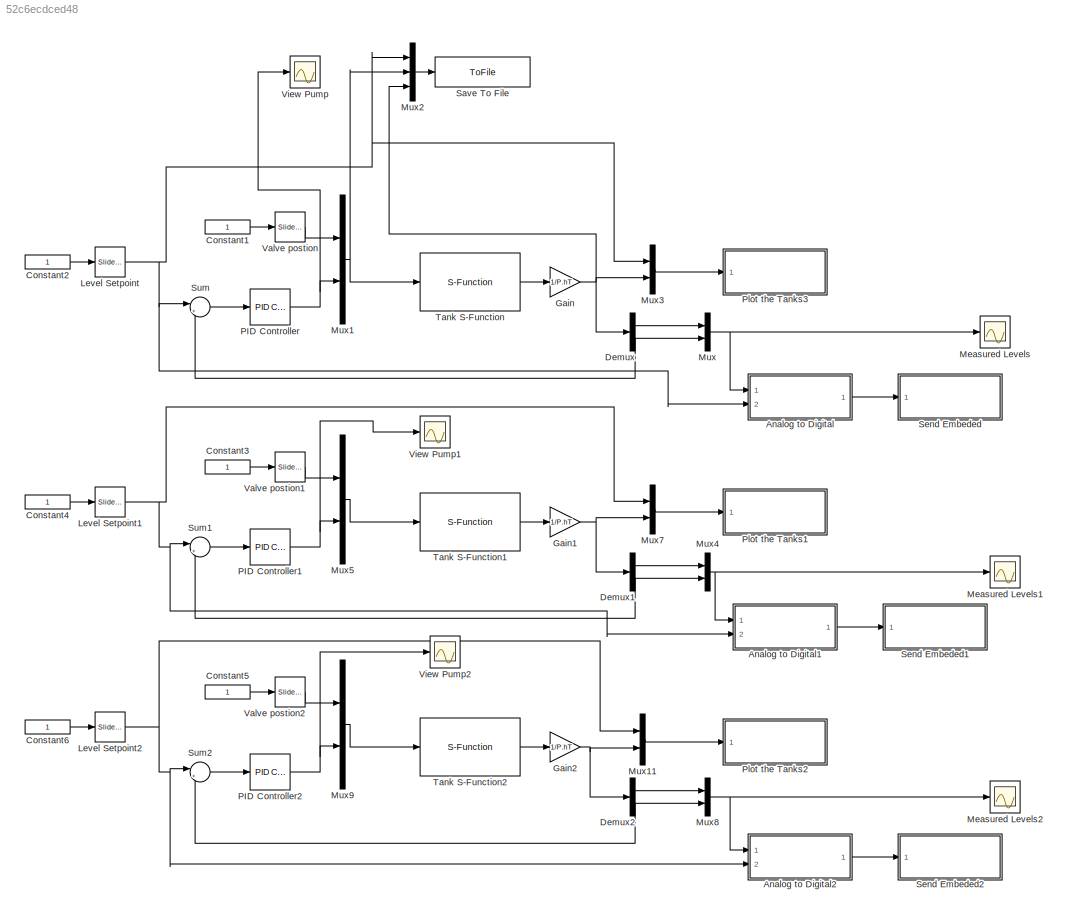
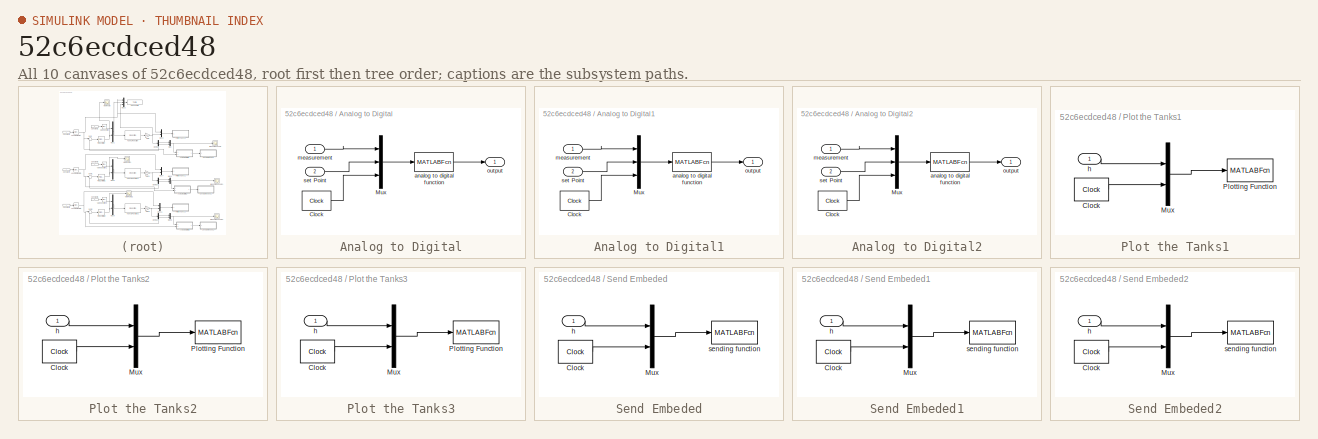
[diagram: thumbnail index - all 10 canvases of the model, root first then tree order]
MODEL slx_52c6ecdced48
KIND model
CONFIG AbsTol = auto
CONFIG EnableMultiTasking = on
CONFIG FixedStep = auto
CONFIG MaxStep = auto
CONFIG MinStep = auto
CONFIG PreLoadFcn = Initialize
CONFIG RelTol = 1e-3
CONFIG SampleTimeConstraint = Unconstrained
CONFIG Solver = ode45
CONFIG SolverName = ode45
CONFIG StartTime = 0.0
CONFIG StopFcn = Plot_and_save
CONFIG StopTime = 500
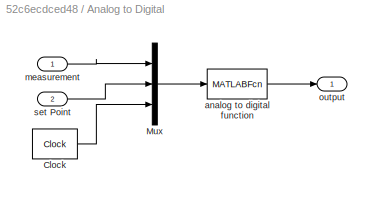
BLOCK [SubSystem] Analog to Digital
  Ports = [2, 1]
  RequestExecContextInheritance = off
BLOCK [Clock] Analog to Digital/Clock
  DisplayTime = on
BLOCK [Mux] Analog to Digital/Mux
  DisplayOption = bar
  Inputs = 3
  Ports = [3, 1]
BLOCK [MATLABFcn] Analog to Digital/analog to digital function
  MATLABFcn = AnalogToDigital(u)
  OutputDimensions = 1
  Ports = [1, 1]
  SampleTime = .05
BLOCK [Inport] Analog to Digital/measurement
BLOCK [Outport] Analog to Digital/output
BLOCK [Inport] Analog to Digital/set Point
  Port = 2
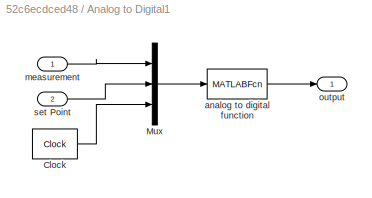
BLOCK [SubSystem] Analog to Digital1
  Ports = [2, 1]
  RequestExecContextInheritance = off
BLOCK [Clock] Analog to Digital1/Clock
  DisplayTime = on
BLOCK [Mux] Analog to Digital1/Mux
  DisplayOption = bar
  Inputs = 3
  Ports = [3, 1]
BLOCK [MATLABFcn] Analog to Digital1/analog to digital function
  MATLABFcn = AnalogToDigital(u)
  OutputDimensions = 1
  Ports = [1, 1]
  SampleTime = .05
BLOCK [Inport] Analog to Digital1/measurement
BLOCK [Outport] Analog to Digital1/output
BLOCK [Inport] Analog to Digital1/set Point
  Port = 2
BLOCK [SubSystem] Analog to Digital2
  Ports = [2, 1]
  RequestExecContextInheritance = off
BLOCK [Clock] Analog to Digital2/Clock
  DisplayTime = on
BLOCK [Mux] Analog to Digital2/Mux
  DisplayOption = bar
  Inputs = 3
  Ports = [3, 1]
BLOCK [MATLABFcn] Analog to Digital2/analog to digital function
  MATLABFcn = AnalogToDigital(u)
  OutputDimensions = 1
  Ports = [1, 1]
  SampleTime = .05
BLOCK [Inport] Analog to Digital2/measurement
BLOCK [Outport] Analog to Digital2/output
BLOCK [Inport] Analog to Digital2/set Point
  Port = 2
BLOCK [Constant] Constant1
  SampleTime = 0.1
BLOCK [Constant] Constant2
  SampleTime = 0.1
BLOCK [Constant] Constant3
BLOCK [Constant] Constant4
BLOCK [Constant] Constant5
BLOCK [Constant] Constant6
BLOCK [Demux] Demux
  Outputs = 2
  Ports = [1, 2]
BLOCK [Demux] Demux1
  Outputs = 2
  Ports = [1, 2]
BLOCK [Demux] Demux2
  Outputs = 2
  Ports = [1, 2]
BLOCK [Gain] Gain
  Gain = 1/P.hT
BLOCK [Gain] Gain1
  Gain = 1/P.hT
BLOCK [Gain] Gain2
  Gain = 1/P.hT
BLOCK [Reference] Level Setpoint  REF=simulink/Math
Operations/Slider
Gain
  Ports = [1, 1]
  SourceBlock = simulink/Math\nOperations/Slider\nGain
  SourceProductBaseCode = SL
  SourceType = Slider Gain
BLOCK [Reference] Level Setpoint1  REF=simulink/Math
Operations/Slider
Gain
  Ports = [1, 1]
  SourceBlock = simulink/Math\nOperations/Slider\nGain
  SourceProductBaseCode = SL
  SourceType = Slider Gain
BLOCK [Reference] Level Setpoint2  REF=simulink/Math
Operations/Slider
Gain
  Ports = [1, 1]
  SourceBlock = simulink/Math\nOperations/Slider\nGain
  SourceProductBaseCode = SL
  SourceType = Slider Gain
BLOCK [Scope] Measured Levels
  Floating = off
  NumInputPorts = 1
  Ports = [1]
  ScopeSpecificationString = Simulink.scopes.TimeScopeBlockCfg('CurrentConfiguration', extmgr.ConfigurationSet(extmgr.Configuration('Core','General UI',true),extmgr.Configuration('Core','Source UI',true),extmgr.Configuration('Sources','WiredSimulink',true,'DataLoggingVariableName','ScopeData1','DataLoggingSaveFormat','StructureWithTime','DataLoggingLimitDataPoints',true,'DataLoggingDecimation','1','DataLoggingDecimateData',tr...<+1765ch>
BLOCK [Scope] Measured Levels1
  Floating = off
  NumInputPorts = 1
  Ports = [1]
  ScopeSpecificationString = Simulink.scopes.TimeScopeBlockCfg('CurrentConfiguration', extmgr.ConfigurationSet(extmgr.Configuration('Core','General UI',true),extmgr.Configuration('Core','Source UI',true),extmgr.Configuration('Sources','WiredSimulink',true,'DataLoggingVariableName','ScopeData1','DataLoggingSaveFormat','StructureWithTime','DataLoggingLimitDataPoints',true,'DataLoggingDecimation','1','DataLoggingDecimateData',tr...<+1769ch>
BLOCK [Scope] Measured Levels2
  Floating = off
  NumInputPorts = 1
  Ports = [1]
  ScopeSpecificationString = Simulink.scopes.TimeScopeBlockCfg('CurrentConfiguration', extmgr.ConfigurationSet(extmgr.Configuration('Core','General UI',true),extmgr.Configuration('Core','Source UI',true),extmgr.Configuration('Sources','WiredSimulink',true,'DataLoggingVariableName','ScopeData3','DataLoggingSaveFormat','StructureWithTime','DataLoggingLimitDataPoints',true,'DataLoggingDecimation','1','DataLoggingDecimateData',tr...<+1773ch>
BLOCK [Mux] Mux
  DisplayOption = bar
  Inputs = 2
  Ports = [2, 1]
BLOCK [Mux] Mux1
  DisplayOption = bar
  Inputs = 2
  Ports = [2, 1]
BLOCK [Mux] Mux11
  DisplayOption = bar
  Inputs = 2
  Ports = [2, 1]
BLOCK [Mux] Mux2
  DisplayOption = bar
  Inputs = 3
  Ports = [3, 1]
BLOCK [Mux] Mux3
  DisplayOption = bar
  Inputs = 2
  Ports = [2, 1]
BLOCK [Mux] Mux4
  DisplayOption = bar
  Inputs = 2
  Ports = [2, 1]
BLOCK [Mux] Mux5
  DisplayOption = bar
  Inputs = 2
  Ports = [2, 1]
BLOCK [Mux] Mux7
  DisplayOption = bar
  Inputs = 2
  Ports = [2, 1]
BLOCK [Mux] Mux8
  DisplayOption = bar
  Inputs = 2
  Ports = [2, 1]
BLOCK [Mux] Mux9
  DisplayOption = bar
  Inputs = 2
  Ports = [2, 1]
BLOCK [Reference] PID Controller  REF=simulink/Continuous/PID Controller
  Ports = [1, 1]
  SourceBlock = simulink/Continuous/PID Controller
  SourceProductBaseCode = SL
  SourceType = PID 1dof
BLOCK [Reference] PID Controller1  REF=simulink/Continuous/PID Controller
  Ports = [1, 1]
  SourceBlock = simulink/Continuous/PID Controller
  SourceProductBaseCode = SL
  SourceType = PID 1dof
BLOCK [Reference] PID Controller2  REF=simulink/Continuous/PID Controller
  Ports = [1, 1]
  SourceBlock = simulink/Continuous/PID Controller
  SourceProductBaseCode = SL
  SourceType = PID 1dof
BLOCK [SubSystem] Plot the Tanks1
  Ports = [1]
  RequestExecContextInheritance = off
BLOCK [Clock] Plot the Tanks1/Clock
  DisplayTime = on
BLOCK [Mux] Plot the Tanks1/Mux
  DisplayOption = bar
  Inputs = 2
  Ports = [2, 1]
BLOCK [MATLABFcn] Plot the Tanks1/Plotting Function
  MATLABFcn = PlotTanks1(u)
  OutputDimensions = 0
  Ports = [1]
  SampleTime = .05
BLOCK [Inport] Plot the Tanks1/h
BLOCK [SubSystem] Plot the Tanks2
  Ports = [1]
  RequestExecContextInheritance = off
BLOCK [Clock] Plot the Tanks2/Clock
  DisplayTime = on
BLOCK [Mux] Plot the Tanks2/Mux
  DisplayOption = bar
  Inputs = 2
  Ports = [2, 1]
BLOCK [MATLABFcn] Plot the Tanks2/Plotting Function
  MATLABFcn = PlotTanks(u)
  OutputDimensions = 0
  Ports = [1]
  SampleTime = .05
BLOCK [Inport] Plot the Tanks2/h
BLOCK [SubSystem] Plot the Tanks3
  Ports = [1]
  RequestExecContextInheritance = off
BLOCK [Clock] Plot the Tanks3/Clock
  DisplayTime = on
BLOCK [Mux] Plot the Tanks3/Mux
  DisplayOption = bar
  Inputs = 2
  Ports = [2, 1]
BLOCK [MATLABFcn] Plot the Tanks3/Plotting Function
  MATLABFcn = PlotTanks2(u)
  OutputDimensions = 0
  Ports = [1]
  SampleTime = .05
BLOCK [Inport] Plot the Tanks3/h
BLOCK [ToFile] Save To File
  Filename = data_manual.mat
  MatrixName = tanks
  Ports = [1]
  SampleTime = 1
BLOCK [SubSystem] Send Embeded
  Ports = [1]
  RequestExecContextInheritance = off
BLOCK [Clock] Send Embeded/Clock
  DisplayTime = on
BLOCK [Mux] Send Embeded/Mux
  DisplayOption = bar
  Inputs = 2
  Ports = [2, 1]
BLOCK [Inport] Send Embeded/h
BLOCK [MATLABFcn] Send Embeded/sending function
  MATLABFcn = SendEmbededData(u)
  OutputDimensions = 0
  Ports = [1]
  SampleTime = .05
BLOCK [SubSystem] Send Embeded1
  Ports = [1]
  RequestExecContextInheritance = off
BLOCK [Clock] Send Embeded1/Clock
  DisplayTime = on
BLOCK [Mux] Send Embeded1/Mux
  DisplayOption = bar
  Inputs = 2
  Ports = [2, 1]
BLOCK [Inport] Send Embeded1/h
BLOCK [MATLABFcn] Send Embeded1/sending function
  MATLABFcn = SendEmbededData2(u)
  OutputDimensions = 0
  Ports = [1]
  SampleTime = .05
BLOCK [SubSystem] Send Embeded2
  Ports = [1]
  RequestExecContextInheritance = off
BLOCK [Clock] Send Embeded2/Clock
  DisplayTime = on
BLOCK [Mux] Send Embeded2/Mux
  DisplayOption = bar
  Inputs = 2
  Ports = [2, 1]
BLOCK [Inport] Send Embeded2/h
BLOCK [MATLABFcn] Send Embeded2/sending function
  MATLABFcn = SendEmbededData3(u)
  OutputDimensions = 0
  Ports = [1]
  SampleTime = .05
BLOCK [Sum] Sum
  Inputs = |+-
  Ports = [2, 1]
BLOCK [Sum] Sum1
  Inputs = |+-
  Ports = [2, 1]
BLOCK [Sum] Sum2
  Inputs = |+-
  Ports = [2, 1]
BLOCK [S-Function] Tank S-Function
  EnableBusSupport = off
  FunctionName = tank_dynamics
  Parameters = P
  Ports = [1, 1]
  SFcnIsStateOwnerBlock = off
  SFunctionDeploymentMode = off
BLOCK [S-Function] Tank S-Function1
  EnableBusSupport = off
  FunctionName = tank_dynamics
  Parameters = P1
  Ports = [1, 1]
  SFcnIsStateOwnerBlock = off
  SFunctionDeploymentMode = off
BLOCK [S-Function] Tank S-Function2
  EnableBusSupport = off
  FunctionName = tank_dynamics
  Parameters = P2
  Ports = [1, 1]
  SFcnIsStateOwnerBlock = off
  SFunctionDeploymentMode = off
BLOCK [Reference] Valve postion  REF=simulink/Math
Operations/Slider
Gain
  Ports = [1, 1]
  SourceBlock = simulink/Math\nOperations/Slider\nGain
  SourceProductBaseCode = SL
  SourceType = Slider Gain
BLOCK [Reference] Valve postion1  REF=simulink/Math
Operations/Slider
Gain
  Ports = [1, 1]
  SourceBlock = simulink/Math\nOperations/Slider\nGain
  SourceProductBaseCode = SL
  SourceType = Slider Gain
BLOCK [Reference] Valve postion2  REF=simulink/Math
Operations/Slider
Gain
  Ports = [1, 1]
  SourceBlock = simulink/Math\nOperations/Slider\nGain
  SourceProductBaseCode = SL
  SourceType = Slider Gain
BLOCK [Scope] View Pump
  Floating = off
  NumInputPorts = 1
  Ports = [1]
  ScopeSpecificationString = Simulink.scopes.TimeScopeBlockCfg('CurrentConfiguration', extmgr.ConfigurationSet(extmgr.Configuration('Core','General UI',true),extmgr.Configuration('Core','Source UI',true),extmgr.Configuration('Sources','WiredSimulink',true,'DataLoggingSaveFormat','StructureWithTime','DataLoggingLimitDataPoints',true,'DataLoggingDecimation','1','DataLoggingDecimateData',true),extmgr.Configuration('Visuals','Tim...<+872ch>
BLOCK [Scope] View Pump1
  Floating = off
  NumInputPorts = 1
  Ports = [1]
  ScopeSpecificationString = Simulink.scopes.TimeScopeBlockCfg('CurrentConfiguration', extmgr.ConfigurationSet(extmgr.Configuration('Core','General UI',true),extmgr.Configuration('Core','Source UI',true),extmgr.Configuration('Sources','WiredSimulink',true,'DataLoggingSaveFormat','StructureWithTime','DataLoggingLimitDataPoints',true,'DataLoggingDecimation','1','DataLoggingDecimateData',true,'DataLoggingVariableName','ScopeData...<+1694ch>
BLOCK [Scope] View Pump2
  Floating = off
  NumInputPorts = 1
  Ports = [1]
  ScopeSpecificationString = Simulink.scopes.TimeScopeBlockCfg('CurrentConfiguration', extmgr.ConfigurationSet(extmgr.Configuration('Core','General UI',true),extmgr.Configuration('Core','Source UI',true),extmgr.Configuration('Sources','WiredSimulink',true,'DataLoggingSaveFormat','StructureWithTime','DataLoggingLimitDataPoints',true,'DataLoggingDecimation','1','DataLoggingDecimateData',true,'DataLoggingVariableName','ScopeData...<+911ch>
LINE Analog to Digital/Clock:1 -> Analog to Digital/Mux:3
LINE Analog to Digital/Mux:1 -> Analog to Digital/analog to digital function:1
LINE Analog to Digital/analog to digital function:1 -> Analog to Digital/output:1
LINE Analog to Digital/measurement:1 -> Analog to Digital/Mux:1
LINE Analog to Digital/set Point:1 -> Analog to Digital/Mux:2
LINE Analog to Digital1/Clock:1 -> Analog to Digital1/Mux:3
LINE Analog to Digital1/Mux:1 -> Analog to Digital1/analog to digital function:1
LINE Analog to Digital1/analog to digital function:1 -> Analog to Digital1/output:1
LINE Analog to Digital1/measurement:1 -> Analog to Digital1/Mux:1
LINE Analog to Digital1/set Point:1 -> Analog to Digital1/Mux:2
LINE Analog to Digital1:1 -> Send Embeded1:1
LINE Analog to Digital2/Clock:1 -> Analog to Digital2/Mux:3
LINE Analog to Digital2/Mux:1 -> Analog to Digital2/analog to digital function:1
LINE Analog to Digital2/analog to digital function:1 -> Analog to Digital2/output:1
LINE Analog to Digital2/measurement:1 -> Analog to Digital2/Mux:1
LINE Analog to Digital2/set Point:1 -> Analog to Digital2/Mux:2
LINE Analog to Digital2:1 -> Send Embeded2:1
LINE Analog to Digital:1 -> Send Embeded:1
LINE Constant1:1 -> Valve postion:1
LINE Constant2:1 -> Level Setpoint:1
LINE Constant3:1 -> Valve postion1:1
LINE Constant4:1 -> Level Setpoint1:1
LINE Constant5:1 -> Valve postion2:1
LINE Constant6:1 -> Level Setpoint2:1
LINE Demux1:1 -> Mux4:1
NET Demux1:2 -> Mux4:2, Sum1:2
LINE Demux2:1 -> Mux8:1
NET Demux2:2 -> Mux8:2, Sum2:2
LINE Demux:1 -> Mux:1
NET Demux:2 -> Mux:2, Sum:2
NET Gain1:1 -> Demux1:1, Mux7:2
NET Gain2:1 -> Demux2:1, Mux11:2
NET Gain:1 -> Demux:1, Mux2:3, Mux3:2
NET Level Setpoint1:1 -> Analog to Digital1:2, Mux7:1, Sum1:1
NET Level Setpoint2:1 -> Analog to Digital2:2, Mux11:1, Sum2:1
NET Level Setpoint:1 -> Analog to Digital:2, Mux2:1, Mux3:1, Sum:1
LINE Mux11:1 -> Plot the Tanks2:1
NET Mux1:1 -> Mux2:2, Tank S-Function:1
LINE Mux2:1 -> Save To File:1
LINE Mux3:1 -> Plot the Tanks3:1
NET Mux4:1 -> Analog to Digital1:1, Measured Levels1:1
LINE Mux5:1 -> Tank S-Function1:1
LINE Mux7:1 -> Plot the Tanks1:1
NET Mux8:1 -> Analog to Digital2:1, Measured Levels2:1
LINE Mux9:1 -> Tank S-Function2:1
NET Mux:1 -> Analog to Digital:1, Measured Levels:1
NET PID Controller1:1 -> Mux5:2, View Pump1:1
NET PID Controller2:1 -> Mux9:2, View Pump2:1
NET PID Controller:1 -> Mux1:2, View Pump:1
LINE Plot the Tanks1/Clock:1 -> Plot the Tanks1/Mux:2
LINE Plot the Tanks1/Mux:1 -> Plot the Tanks1/Plotting Function:1
LINE Plot the Tanks1/h:1 -> Plot the Tanks1/Mux:1
LINE Plot the Tanks2/Clock:1 -> Plot the Tanks2/Mux:2
LINE Plot the Tanks2/Mux:1 -> Plot the Tanks2/Plotting Function:1
LINE Plot the Tanks2/h:1 -> Plot the Tanks2/Mux:1
LINE Plot the Tanks3/Clock:1 -> Plot the Tanks3/Mux:2
LINE Plot the Tanks3/Mux:1 -> Plot the Tanks3/Plotting Function:1
LINE Plot the Tanks3/h:1 -> Plot the Tanks3/Mux:1
LINE Send Embeded/Clock:1 -> Send Embeded/Mux:2
LINE Send Embeded/Mux:1 -> Send Embeded/sending function:1
LINE Send Embeded/h:1 -> Send Embeded/Mux:1
LINE Send Embeded1/Clock:1 -> Send Embeded1/Mux:2
LINE Send Embeded1/Mux:1 -> Send Embeded1/sending function:1
LINE Send Embeded1/h:1 -> Send Embeded1/Mux:1
LINE Send Embeded2/Clock:1 -> Send Embeded2/Mux:2
LINE Send Embeded2/Mux:1 -> Send Embeded2/sending function:1
LINE Send Embeded2/h:1 -> Send Embeded2/Mux:1
LINE Sum1:1 -> PID Controller1:1
LINE Sum2:1 -> PID Controller2:1
LINE Sum:1 -> PID Controller:1
LINE Tank S-Function1:1 -> Gain1:1
LINE Tank S-Function2:1 -> Gain2:1
LINE Tank S-Function:1 -> Gain:1
LINE Valve postion1:1 -> Mux5:1
LINE Valve postion2:1 -> Mux9:1
LINE Valve postion:1 -> Mux1:1
note: NET lines group one-source signal fan-out (src -> all destinations, sorted); 1:1 wires keep LINE
